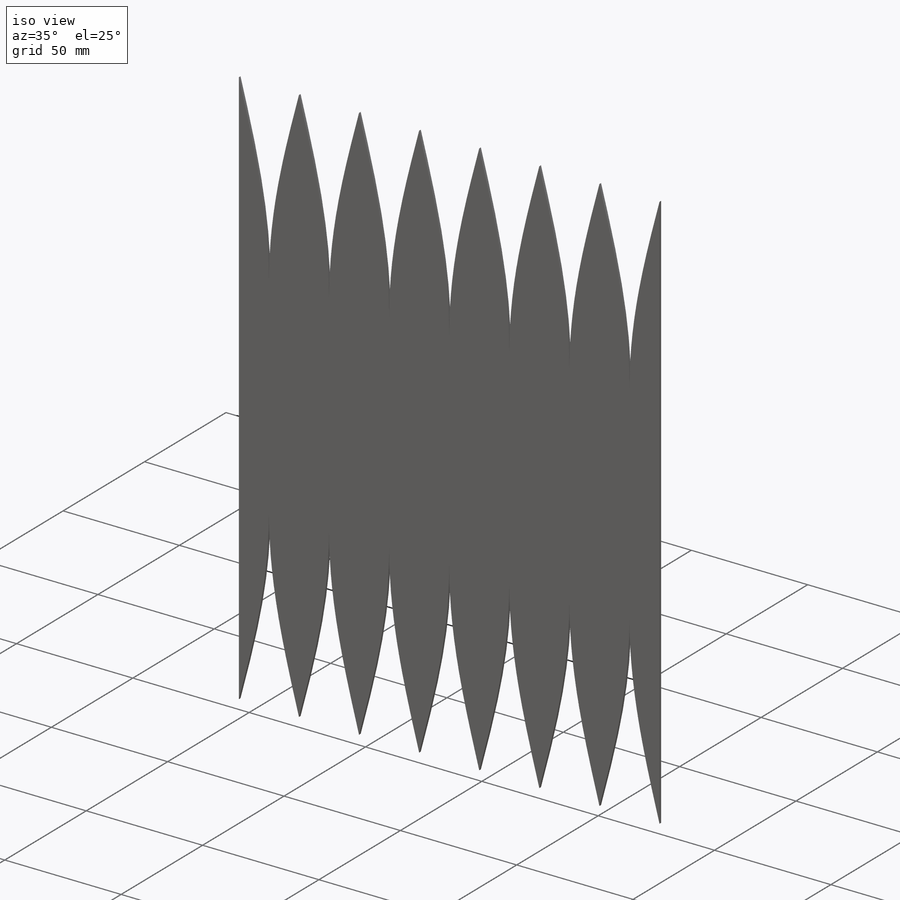
[diagram: iso view]
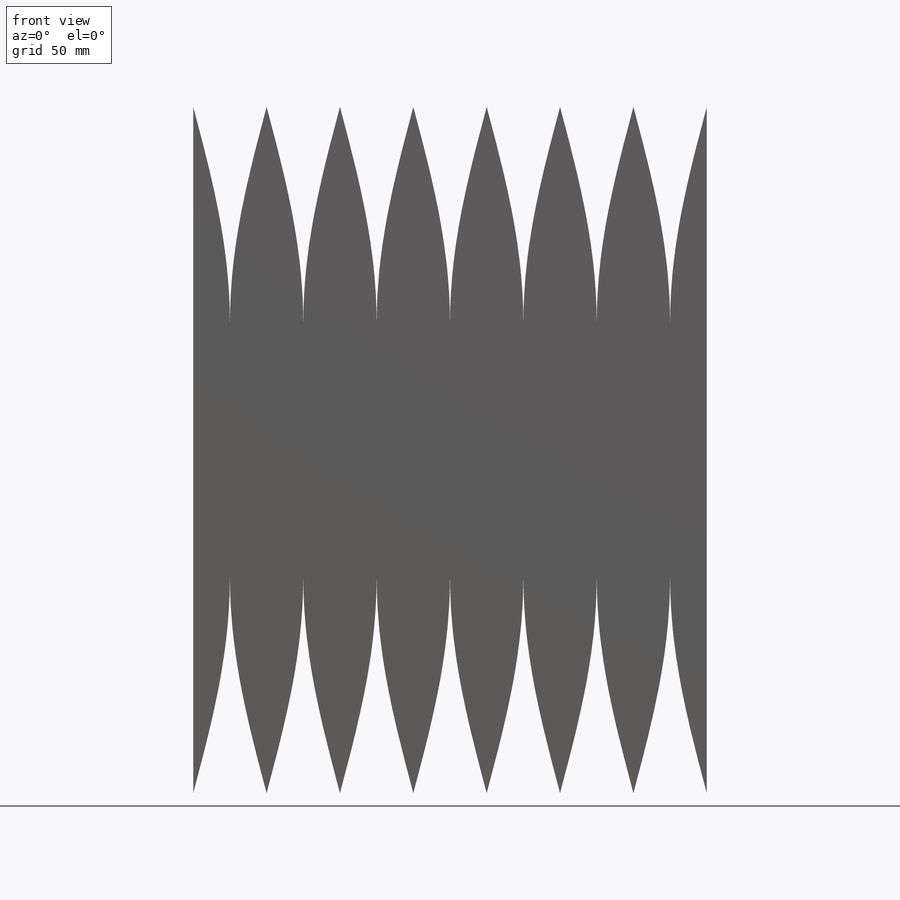
[diagram: front view]
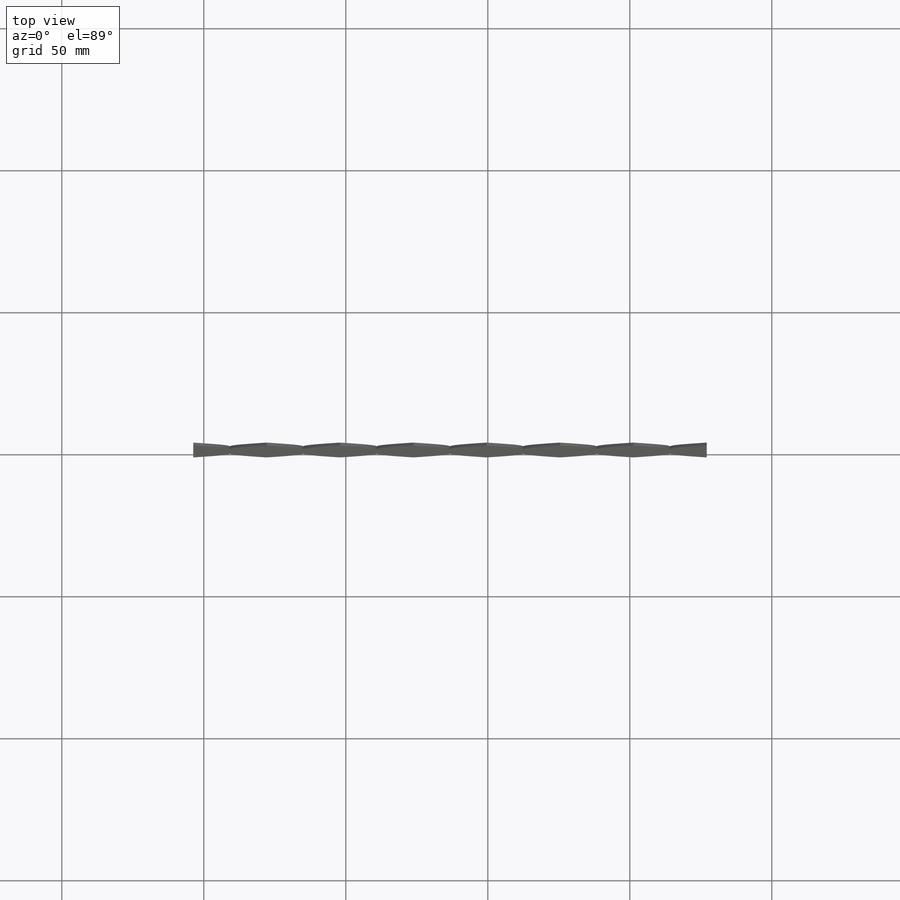
[diagram: top view]
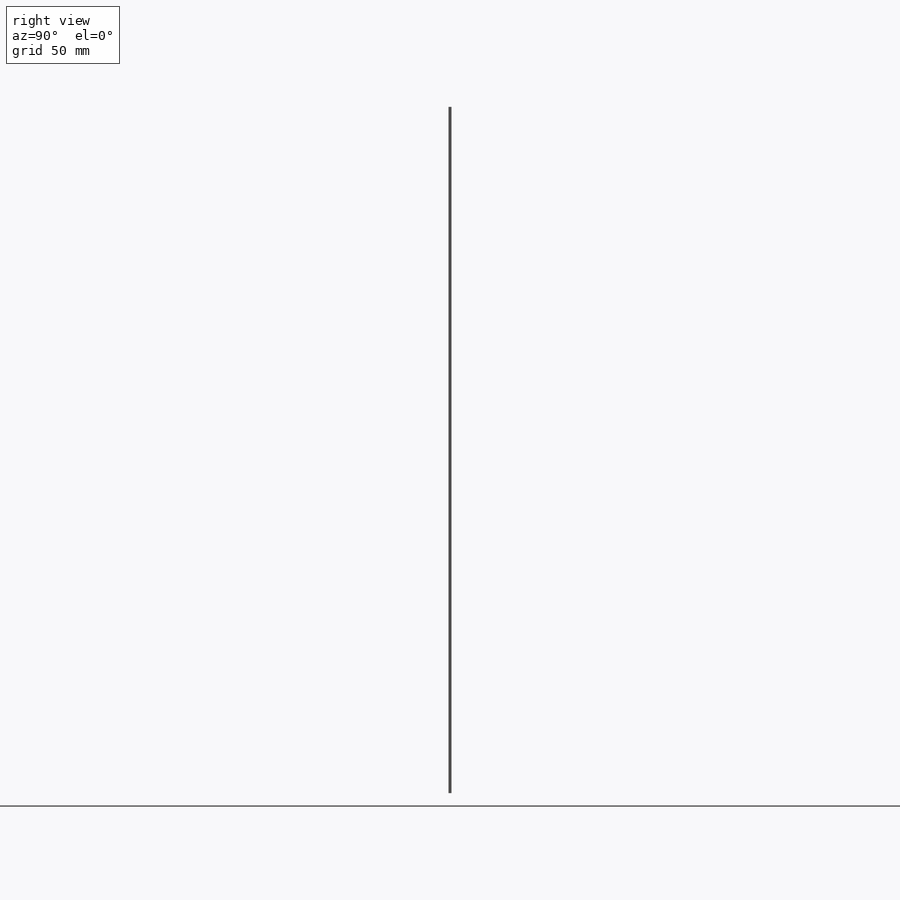
[diagram: right view]
SOLIDWORKS PART (.sldprt)
format: sldprt  version: not decoded by parser v0  size: 1,460,224 bytes
history: native  units: mm
features: sketch x48, sheet_metal_op x23, mirror x19, cut_extrude x5, plane x2, pattern_circular x2, extrude x2, material x1, revolve x1 + 22 further entries (+11 scaffold rows collapsed; 2 parser-record rows omitted)
feature tree (138):
  scaffold x11  (default folders/planes/origin — collapsed)
  material  "Material <not specified>"
  sketch  "Sketch1"  dims[c1.D1=88.9mm c1.D2=88.9mm c2.D1=~177.573012deg c3.D1=1.016mm]
  revolve  "Revolve1"  Angle=180deg
  plane  "Plane1"
  plane  "Plane2"
  sketch  "Sketch2"  dims[D1=0.0508mm]
  cut_extrude  "Cut-Extrude1"  [1 undecoded]
  sketch  "Sketch3"  dims[D1=0.0508mm]
  cut_extrude  "Cut-Extrude2"  [1 undecoded]
  sketch  "Sketch4"  dims[D1=0.0508mm]
  cut_extrude  "Cut-Extrude3"  [1 undecoded]
  sketch  "Sketch5"  dims[c1.D1=88.9mm c1.D2=49.022mm c2.D1=88.9mm c2.D2=49.022mm]
  sheet_metal_op  "Sheet-Metal1"
  sheet_metal_op  "Sheet-Metal2"  Thickness=0.8255mm
  sheet_metal_op  "Sheet-Metal3"  Thickness=0.8255mm
  sheet_metal_op  "Sheet-Metal4"  Thickness=0.8255mm
  sheet_metal_op  "Sheet-Metal5"  Thickness=0.8255mm
  sheet_metal_op  "Sheet-Metal6"  Thickness=0.8255mm
  sheet_metal_op  "Sheet-Metal7"  Thickness=0.8255mm
  sheet_metal_op  "Sheet-Metal8"  Thickness=0.8255mm
  sheet_metal_op  "Sheet-Metal9"  Thickness=0.8255mm
  sheet_metal_op  "Sheet-Metal10"  Thickness=0.8255mm
  sheet_metal_op  "Sheet-Metal11"  Thickness=0.8255mm
  sheet_metal_op  "Sheet-Metal12"  Thickness=0.8255mm
  sheet_metal_op  "Sheet-Metal13"  Thickness=0.8255mm
  sheet_metal_op  "Sheet-Metal14"  Thickness=0.8255mm
  sheet_metal_op  "Sheet-Metal17"  Thickness=0.8255mm
  sheet_metal_op  "Sheet-Metal18"  Thickness=0.8255mm
  sheet_metal_op  "Base-Flange1"
  sheet_metal_op  "BaseBend4"
  sketch  "Sketch9"  dims[c1.D1=~2.884045mm c1.D2=~51.906045mm c2.D2=30.0deg c2.D1=~2.884045mm]
  cut_extrude  "Cut-Extrude4"  [1 undecoded]
  pattern_circular  "CirPattern1"  Count=1 Angle=90deg
  pattern_circular  "CirPattern2"  Count=1 Angle=90deg
  sketch  "Sketch50"  dims[D1=88.9mm D2=49.022mm]
  sheet_metal_op  "Sheet-Metal15"
  sheet_metal_op  "Sheet-Metal16"
  sheet_metal_op  "Sheet-Metal19"  Base-Flange2=0
  sheet_metal_op  "BaseBend5"
  sheet_metal_op  "BaseBend6"
  sketch  "Sketch54"  dims[c1.D1=~56.495335mm c2.D1=15.0deg c2.D2=3.175mm]
  cut_extrude  "Cut-Extrude9"  [1 undecoded]
  mirror  "Mirror1"
  sketch  "Sketch65"  dims[D1=~25.828427mm D2=~25.828427mm]
  extrude  "Boss-Extrude2"  Depth=1.016mm
  "Flat-Pattern1"
  sketch  "Bend-Lines1"
  sketch  "Bounding-Box1"
  "Flatten-<BaseBend4>1"
  parser-record x2  (decoder bookkeeping rows leaked as tree rows — omitted from the tree; the rows remain in map.json)
  mirror  "Flat-Pattern2"
  sketch  "Bend-Lines2"
  sketch  "Bounding-Box2"
  mirror  "Flat-Pattern3"
  sketch  "Bend-Lines3"
  sketch  "Bounding-Box3"
  mirror  "Flat-Pattern4"
  sketch  "Bend-Lines4"
  sketch  "Bounding-Box4"
  mirror  "Flat-Pattern5"
  sketch  "Bend-Lines5"
  sketch  "Bounding-Box5"
  mirror  "Flat-Pattern6"
  sketch  "Bend-Lines6"
  sketch  "Bounding-Box6"
  mirror  "Flat-Pattern7"
  sketch  "Bend-Lines7"
  sketch  "Bounding-Box7"
  mirror  "Flat-Pattern8"
  sketch  "Bend-Lines8"
  sketch  "Bounding-Box8"
  "Flatten-<DerivedBend19>2"
  "Flatten-<DerivedBend20>2"
  mirror  "Flat-Pattern9"
  sketch  "Bend-Lines9"
  sketch  "Bounding-Box9"
  "Flatten-<DerivedBend19>1"
  "Flatten-<DerivedBend20>1"
  mirror  "Flat-Pattern10"
  sketch  "Bend-Lines10"
  sketch  "Bounding-Box10"
  "Flatten-<DerivedBend11>1"
  "Flatten-<DerivedBend12>1"
  mirror  "Flat-Pattern11"
  sketch  "Bend-Lines11"
  sketch  "Bounding-Box11"
  mirror  "Flat-Pattern12"
  sketch  "Bend-Lines12"
  sketch  "Bounding-Box12"
  mirror  "Flat-Pattern13"
  sketch  "Bend-Lines13"
  sketch  "Bounding-Box13"
  "Flatten-<DerivedBend15>2"
  "Flatten-<DerivedBend16>2"
  mirror  "Flat-Pattern14"
  sketch  "Bend-Lines14"
  sketch  "Bounding-Box14"
  "Flatten-<DerivedBend15>1"
  "Flatten-<DerivedBend16>1"
  mirror  "Flat-Pattern15"
  sketch  "Bend-Lines15"
  sketch  "Bounding-Box15"
  "Flatten-<BaseBend5>1"
  "Flatten-<BaseBend6>1"
  mirror  "Flat-Pattern16"
  sketch  "Bend-Lines16"
  sketch  "Bounding-Box16"
  "Flatten-<DerivedBend21>1"
  "Flatten-<DerivedBend22>1"
  mirror  "Flat-Pattern17"
  sketch  "Bend-Lines17"
  sketch  "Bounding-Box17"
  "Flatten-<DerivedBend15>3"
  "Flatten-<DerivedBend16>3"
  mirror  "Flat-Pattern18"
  sketch  "Bend-Lines18"
  sketch  "Bounding-Box18"
  "Flatten-<DerivedBend15>4"
  "Flatten-<DerivedBend16>4"
  mirror  "Flat-Pattern19"
  sketch  "Bend-Lines19"
  sketch  "Bounding-Box19"
  "Flatten-<DerivedBend21>2"
  "Flatten-<DerivedBend22>2"
  sketch  "Sketch58"  dims[D2=~25.828427mm D4=~25.828427mm D1=0.0mm]
  extrude  "Boss-Extrude1"  Depth=3.175mm
decode coverage: 31 of 100 modeling features carry decoded parameters; 22 rows unclassified (native names shown)
note: ~ marks probable driven/reference dimensions
note: 5 parameter values undecoded
summary: no parameter record found for 5 features
note: suppression state not decoded; provenance and decode notes live in map.json
